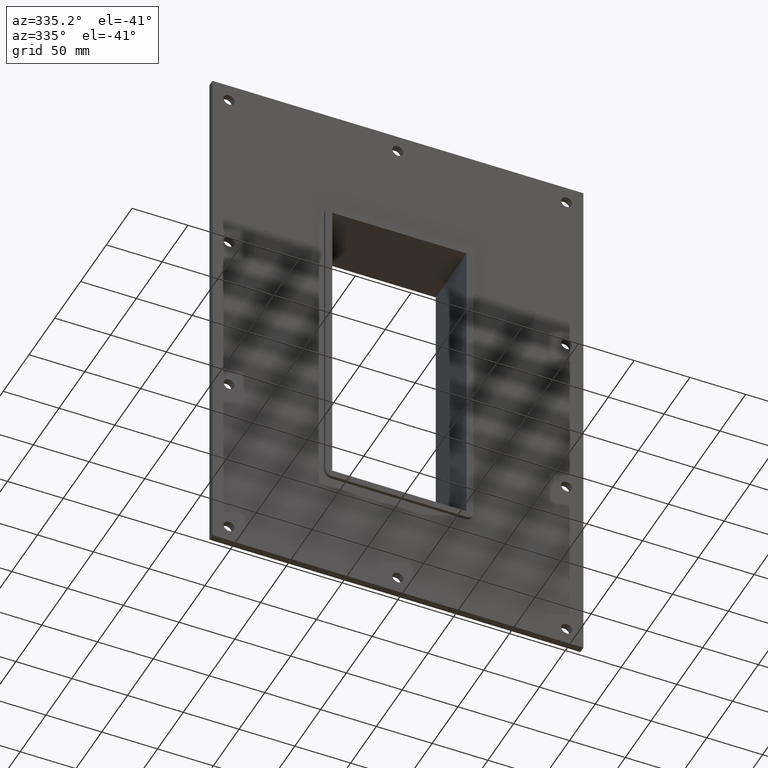
[diagram: clean part render]
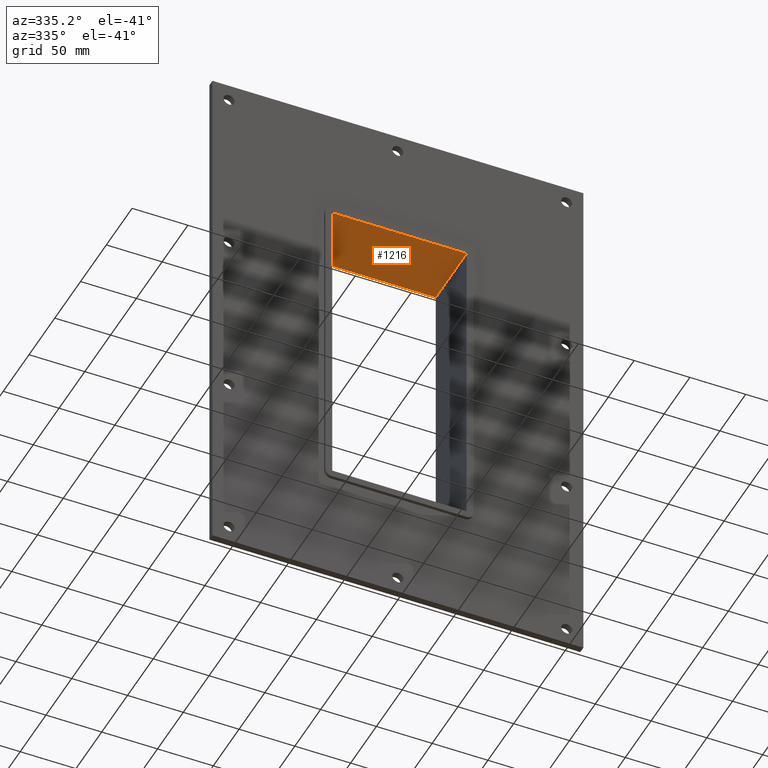
[diagram: same view with one face highlighted and labeled with its STEP entity id]
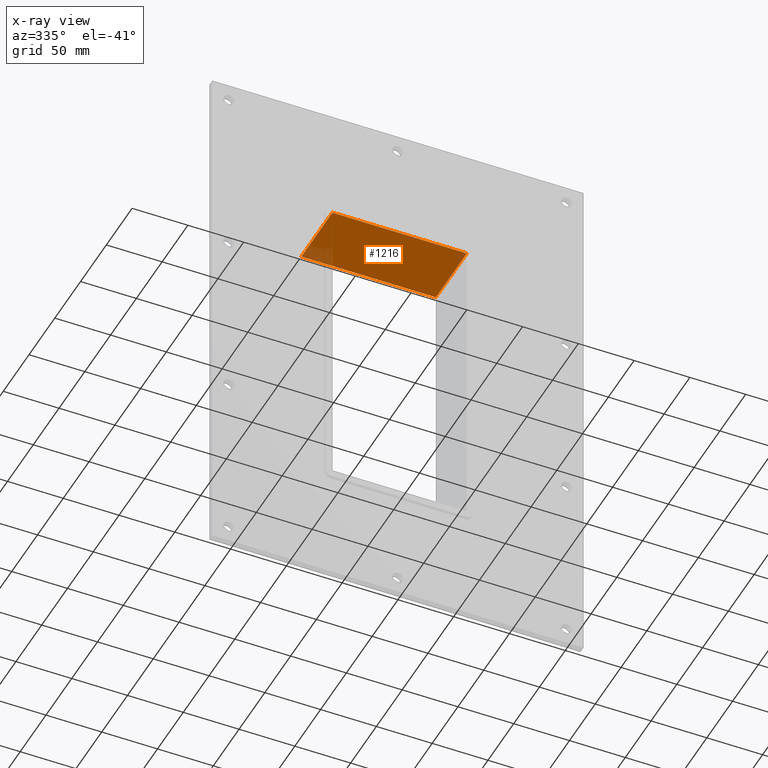
[diagram: x-ray of the same camera — body ghosted, the highlighted face saturated]
A machine part, auxiliary view. The second image highlights one B-rep face of the part: STEP entity #1216.
The next image is the same camera in x-ray: the body ghosted, the highlighted face saturated — about 6% of this face is hidden behind the body in this view.
In plain terms, the highlighted planar face has unit normal (0, 0, 1).
Its self-contained STEP definition (entity closure, byte-faithful):
#711=CARTESIAN_POINT('',(-60.25,57.0,139.0));
#712=VERTEX_POINT('',#711);
#719=CARTESIAN_POINT('',(-60.25,-3.0,139.0));
#720=VERTEX_POINT('',#719);
#721=CARTESIAN_POINT('',(-60.25,-3.0,139.0));
#722=DIRECTION('',(0.0,1.0,0.0));
#723=VECTOR('',#722,60.0);
#724=LINE('',#721,#723);
#725=EDGE_CURVE('',#720,#712,#724,.T.);
#1052=CARTESIAN_POINT('',(60.25,-3.0,139.0));
#1053=VERTEX_POINT('',#1052);
#1069=CARTESIAN_POINT('',(-60.25,-3.0,139.0));
#1070=DIRECTION('',(1.0,0.0,0.0));
#1071=VECTOR('',#1070,120.50000000000001);
#1072=LINE('',#1069,#1071);
#1073=EDGE_CURVE('',#720,#1053,#1072,.T.);
#1183=CARTESIAN_POINT('',(60.25,57.0,139.0));
#1184=VERTEX_POINT('',#1183);
#1185=CARTESIAN_POINT('',(60.25,-3.0,139.0));
#1186=DIRECTION('',(0.0,1.0,0.0));
#1187=VECTOR('',#1186,60.0);
#1188=LINE('',#1185,#1187);
#1189=EDGE_CURVE('',#1053,#1184,#1188,.T.);
#1200=CARTESIAN_POINT('',(-60.25,0.0,139.0));
#1201=DIRECTION('',(0.0,0.0,1.0));
#1202=DIRECTION('',(1.0,0.0,0.0));
#1203=AXIS2_PLACEMENT_3D('',#1200,#1201,#1202);
#1204=PLANE('',#1203);
#1205=ORIENTED_EDGE('',*,*,#725,.T.);
#1206=CARTESIAN_POINT('',(60.250000000000014,57.0,139.0));
#1207=DIRECTION('',(-1.0,0.0,0.0));
#1208=VECTOR('',#1207,120.50000000000001);
#1209=LINE('',#1206,#1208);
#1210=EDGE_CURVE('',#1184,#712,#1209,.T.);
#1211=ORIENTED_EDGE('',*,*,#1210,.F.);
#1212=ORIENTED_EDGE('',*,*,#1189,.F.);
#1213=ORIENTED_EDGE('',*,*,#1073,.F.);
#1214=EDGE_LOOP('',(#1205,#1211,#1212,#1213));
#1215=FACE_OUTER_BOUND('',#1214,.T.);
#1216=ADVANCED_FACE('',(#1215),#1204,.F.);